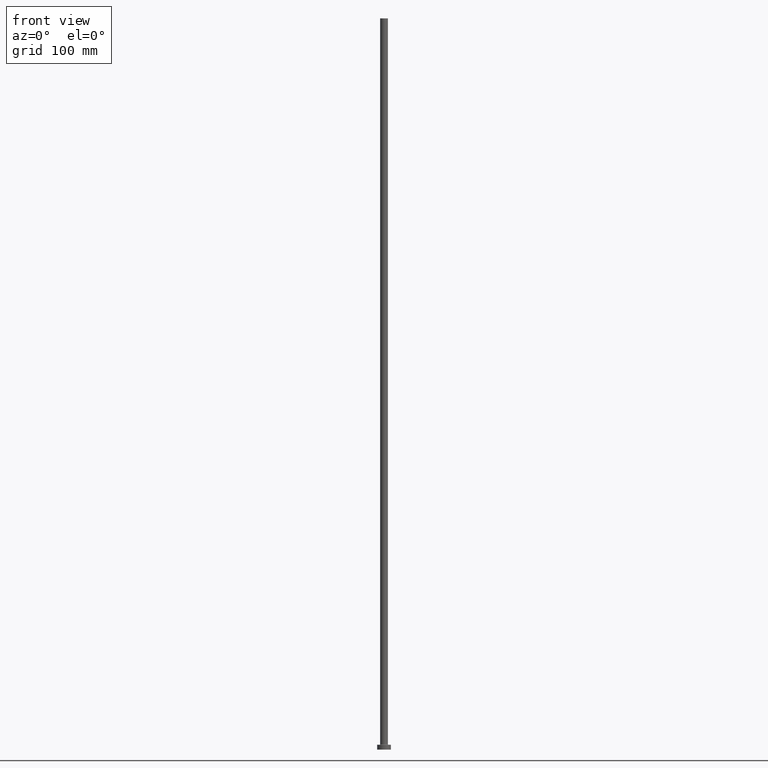
[diagram: clean part render]
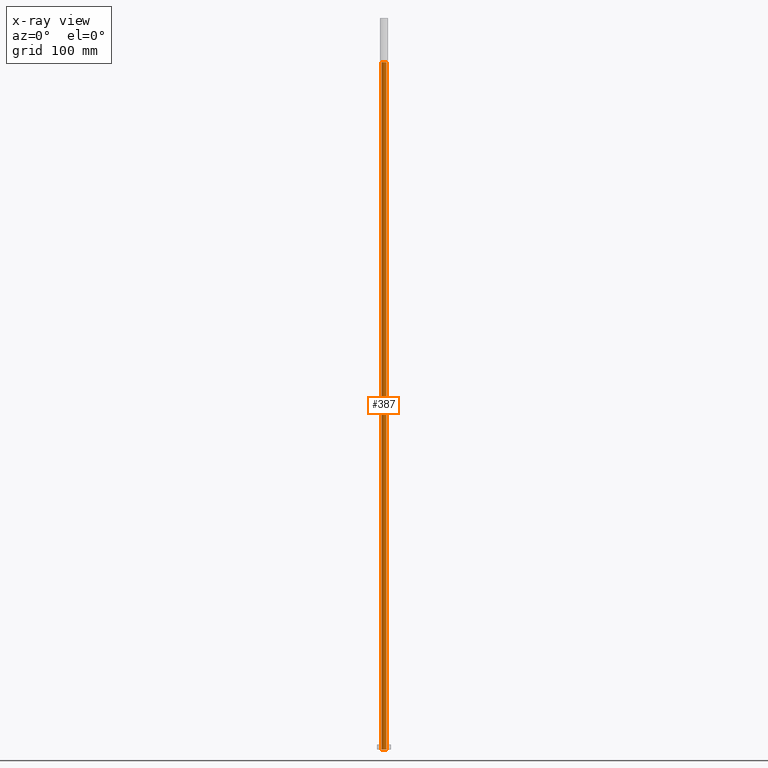
[diagram: x-ray — body ghosted, one internal face saturated and labeled with its STEP entity id]
A machine part, front view, then the same camera in x-ray: the body is ghosted and one INTERNAL B-rep face — a face not visible from any outside direction — is saturated and labeled: STEP entity #387.
In plain terms, the highlighted cylindrical surface (edge-blend (fillet) strip) has radius 2.4 mm, axis along (0, 0, -1).
Its self-contained STEP definition (entity closure, byte-faithful):
#7 = CYLINDRICAL_SURFACE ( 'NONE', #146, 2.399999999999999911 ) ;
#14 = CIRCLE ( 'NONE', #385, 2.399999999999999911 ) ;
#15 = CARTESIAN_POINT ( 'NONE',  ( -2.399999999999999911, 0.000000000000000000, 711.7882250993908428 ) ) ;
#37 = DIRECTION ( 'NONE',  ( 1.000000000000000000, 0.000000000000000000, 0.000000000000000000 ) ) ;
#41 = VERTEX_POINT ( 'NONE', #128 ) ;
#51 = CARTESIAN_POINT ( 'NONE',  ( -2.399999999999999911, 0.000000000000000000, 0.000000000000000000 ) ) ;
#68 = ORIENTED_EDGE ( 'NONE', *, *, #239, .T. ) ;
#80 = LINE ( 'NONE', #359, #154 ) ;
#82 = DIRECTION ( 'NONE',  ( -1.000000000000000000, 0.000000000000000000, 0.000000000000000000 ) ) ;
#104 = FACE_OUTER_BOUND ( 'NONE', #435, .T. ) ;
#116 = DIRECTION ( 'NONE',  ( 0.000000000000000000, 0.000000000000000000, 1.000000000000000000 ) ) ;
#128 = CARTESIAN_POINT ( 'NONE',  ( -2.399999999999999911, 0.000000000000000000, 705.0000000000000000 ) ) ;
#136 = DIRECTION ( 'NONE',  ( -0.000000000000000000, -0.000000000000000000, -1.000000000000000000 ) ) ;
#144 = VERTEX_POINT ( 'NONE', #51 ) ;
#146 = AXIS2_PLACEMENT_3D ( 'NONE', #326, #289, #82 ) ;
#147 = VERTEX_POINT ( 'NONE', #192 ) ;
#149 = ORIENTED_EDGE ( 'NONE', *, *, #421, .F. ) ;
#154 = VECTOR ( 'NONE', #181, 1000.000000000000000 ) ;
#176 = AXIS2_PLACEMENT_3D ( 'NONE', #316, #136, #37 ) ;
#181 = DIRECTION ( 'NONE',  ( 0.000000000000000000, 0.000000000000000000, -1.000000000000000000 ) ) ;
#192 = CARTESIAN_POINT ( 'NONE',  ( 2.399999999999999911, 2.939152317953647106E-16, 0.000000000000000000 ) ) ;
#232 = VERTEX_POINT ( 'NONE', #315 ) ;
#239 = EDGE_CURVE ( 'NONE', #147, #144, #363, .T. ) ;
#254 = CARTESIAN_POINT ( 'NONE',  ( 0.000000000000000000, 0.000000000000000000, 705.0000000000000000 ) ) ;
#256 = DIRECTION ( 'NONE',  ( 1.000000000000000000, 0.000000000000000000, 0.000000000000000000 ) ) ;
#287 = ORIENTED_EDGE ( 'NONE', *, *, #442, .T. ) ;
#289 = DIRECTION ( 'NONE',  ( 0.000000000000000000, 0.000000000000000000, -1.000000000000000000 ) ) ;
#292 = DIRECTION ( 'NONE',  ( 0.000000000000000000, 0.000000000000000000, -1.000000000000000000 ) ) ;
#315 = CARTESIAN_POINT ( 'NONE',  ( 2.399999999999999911, 2.939152317953647106E-16, 705.0000000000000000 ) ) ;
#316 = CARTESIAN_POINT ( 'NONE',  ( 0.000000000000000000, 0.000000000000000000, 0.000000000000000000 ) ) ;
#324 = EDGE_CURVE ( 'NONE', #232, #147, #80, .T. ) ;
#326 = CARTESIAN_POINT ( 'NONE',  ( 0.000000000000000000, 0.000000000000000000, 711.7882250993908428 ) ) ;
#359 = CARTESIAN_POINT ( 'NONE',  ( 2.399999999999999911, 2.939152317953647106E-16, 711.7882250993908428 ) ) ;
#363 = CIRCLE ( 'NONE', #176, 2.399999999999999911 ) ;
#385 = AXIS2_PLACEMENT_3D ( 'NONE', #254, #116, #256 ) ;
#387 = ADVANCED_FACE ( 'NONE', ( #104 ), #7, .F. ) ;
#421 = EDGE_CURVE ( 'NONE', #41, #144, #443, .T. ) ;
#431 = VECTOR ( 'NONE', #292, 1000.000000000000000 ) ;
#435 = EDGE_LOOP ( 'NONE', ( #287, #439, #68, #149 ) ) ;
#439 = ORIENTED_EDGE ( 'NONE', *, *, #324, .T. ) ;
#442 = EDGE_CURVE ( 'NONE', #41, #232, #14, .T. ) ;
#443 = LINE ( 'NONE', #15, #431 ) ;